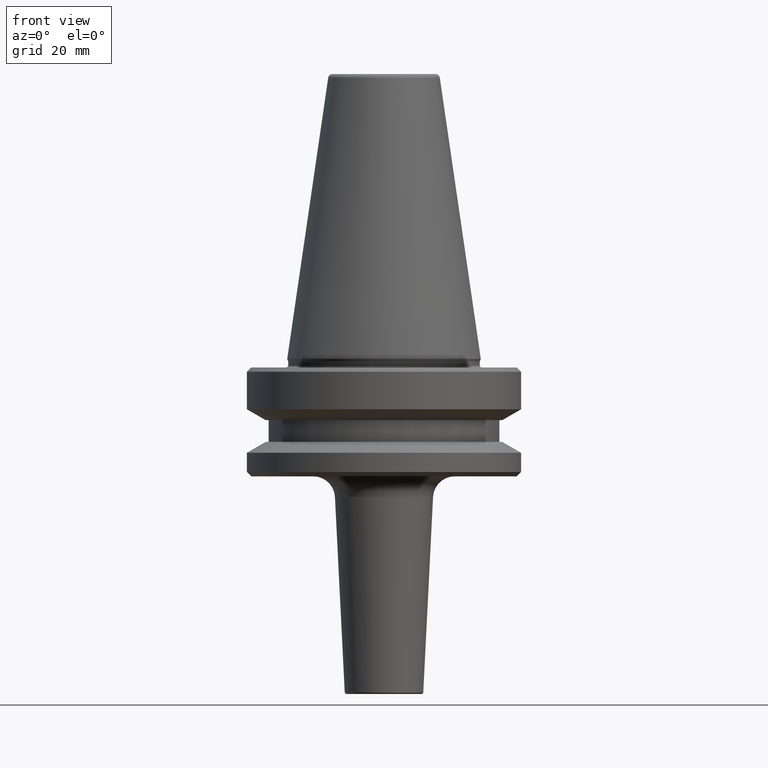
[diagram: clean part render]
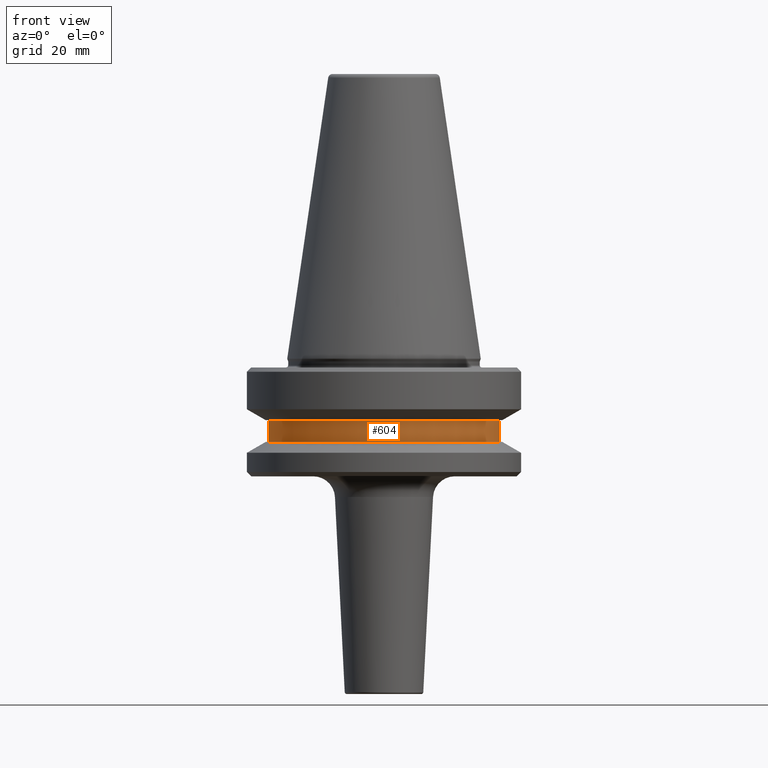
[diagram: same view with one face highlighted and labeled with its STEP entity id]
A machine part, front view. The second image highlights one B-rep face of the part: STEP entity #604.
In plain terms, the highlighted cylindrical surface (partial cylindrical patch) has radius 26.5 mm, axis along (-0, -0, 1).
Its self-contained STEP definition (entity closure, byte-faithful):
#16 = DIRECTION ( 'NONE',  ( -0.0000000000000000000, -0.0000000000000000000, 1.000000000000000000 ) ) ;
#27 = DIRECTION ( 'NONE',  ( 1.000000000000000000, 0.0000000000000000000, 0.0000000000000000000 ) ) ;
#84 = CARTESIAN_POINT ( 'NONE',  ( -26.50000000000019200, 3.245314017740509400E-015, -84.50000000000068200 ) ) ;
#94 = VECTOR ( 'NONE', #367, 1000.000000000000000 ) ;
#125 = AXIS2_PLACEMENT_3D ( 'NONE', #1005, #280, #27 ) ;
#127 = CARTESIAN_POINT ( 'NONE',  ( -26.50000000000019200, 3.245314017740509400E-015, 6.357346922996331500 ) ) ;
#131 = ORIENTED_EDGE ( 'NONE', *, *, #765, .F. ) ;
#204 = CARTESIAN_POINT ( 'NONE',  ( -26.50000000000019200, 3.245314017740509400E-015, -79.50000000000012800 ) ) ;
#211 = CARTESIAN_POINT ( 'NONE',  ( 26.50000000000019200, 0.0000000000000000000, -84.50000000000068200 ) ) ;
#215 = AXIS2_PLACEMENT_3D ( 'NONE', #838, #813, #514 ) ;
#268 = FACE_OUTER_BOUND ( 'NONE', #873, .T. ) ;
#280 = DIRECTION ( 'NONE',  ( -0.0000000000000000000, -0.0000000000000000000, 1.000000000000000000 ) ) ;
#288 = DIRECTION ( 'NONE',  ( 1.000000000000000000, 0.0000000000000000000, 0.0000000000000000000 ) ) ;
#310 = LINE ( 'NONE', #676, #94 ) ;
#367 = DIRECTION ( 'NONE',  ( -0.0000000000000000000, -0.0000000000000000000, 1.000000000000000000 ) ) ;
#402 = ORIENTED_EDGE ( 'NONE', *, *, #1052, .T. ) ;
#419 = VECTOR ( 'NONE', #16, 1000.000000000000000 ) ;
#448 = VERTEX_POINT ( 'NONE', #204 ) ;
#514 = DIRECTION ( 'NONE',  ( 1.000000000000000000, 0.0000000000000000000, 0.0000000000000000000 ) ) ;
#536 = CYLINDRICAL_SURFACE ( 'NONE', #125, 26.50000000000019200 ) ;
#547 = VERTEX_POINT ( 'NONE', #84 ) ;
#556 = CARTESIAN_POINT ( 'NONE',  ( 0.0000000000000000000, 0.0000000000000000000, -79.50000000000012800 ) ) ;
#604 = ADVANCED_FACE ( 'NONE', ( #268 ), #536, .T. ) ;
#636 = CIRCLE ( 'NONE', #215, 26.50000000000019200 ) ;
#676 = CARTESIAN_POINT ( 'NONE',  ( 26.50000000000019200, 0.0000000000000000000, 6.357346922996331500 ) ) ;
#727 = VERTEX_POINT ( 'NONE', #211 ) ;
#750 = CARTESIAN_POINT ( 'NONE',  ( 26.50000000000019200, 0.0000000000000000000, -79.50000000000012800 ) ) ;
#757 = AXIS2_PLACEMENT_3D ( 'NONE', #556, #759, #288 ) ;
#759 = DIRECTION ( 'NONE',  ( -0.0000000000000000000, -0.0000000000000000000, 1.000000000000000000 ) ) ;
#765 = EDGE_CURVE ( 'NONE', #448, #1050, #827, .T. ) ;
#779 = ORIENTED_EDGE ( 'NONE', *, *, #835, .T. ) ;
#813 = DIRECTION ( 'NONE',  ( -0.0000000000000000000, -0.0000000000000000000, 1.000000000000000000 ) ) ;
#827 = CIRCLE ( 'NONE', #757, 26.50000000000019200 ) ;
#829 = EDGE_CURVE ( 'NONE', #547, #448, #842, .T. ) ;
#835 = EDGE_CURVE ( 'NONE', #547, #727, #636, .T. ) ;
#838 = CARTESIAN_POINT ( 'NONE',  ( 0.0000000000000000000, 0.0000000000000000000, -84.50000000000068200 ) ) ;
#842 = LINE ( 'NONE', #127, #419 ) ;
#873 = EDGE_LOOP ( 'NONE', ( #1038, #779, #402, #131 ) ) ;
#1005 = CARTESIAN_POINT ( 'NONE',  ( 0.0000000000000000000, 0.0000000000000000000, 6.357346922996331500 ) ) ;
#1038 = ORIENTED_EDGE ( 'NONE', *, *, #829, .F. ) ;
#1050 = VERTEX_POINT ( 'NONE', #750 ) ;
#1052 = EDGE_CURVE ( 'NONE', #727, #1050, #310, .T. ) ;